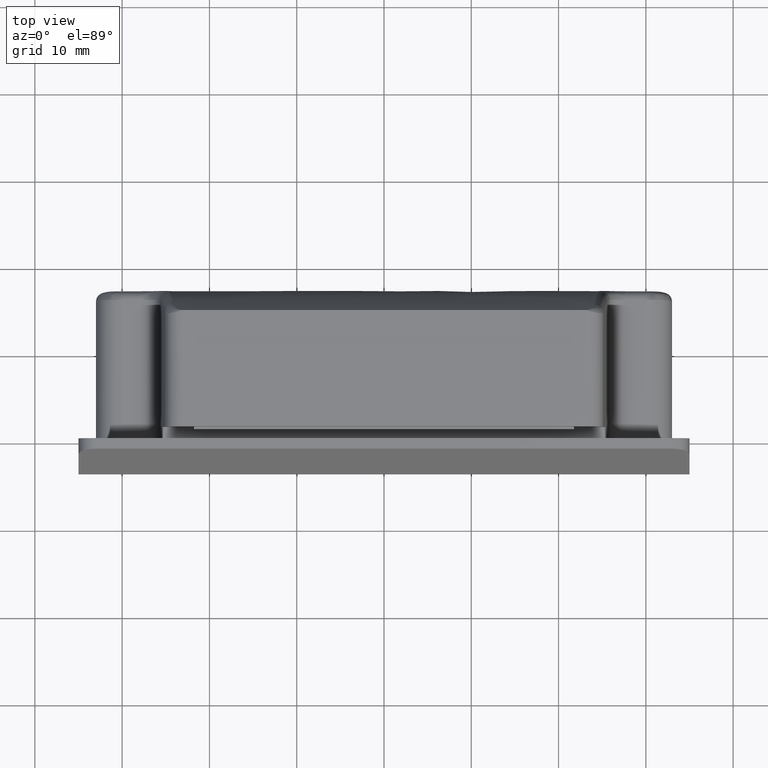
[diagram: clean part render]
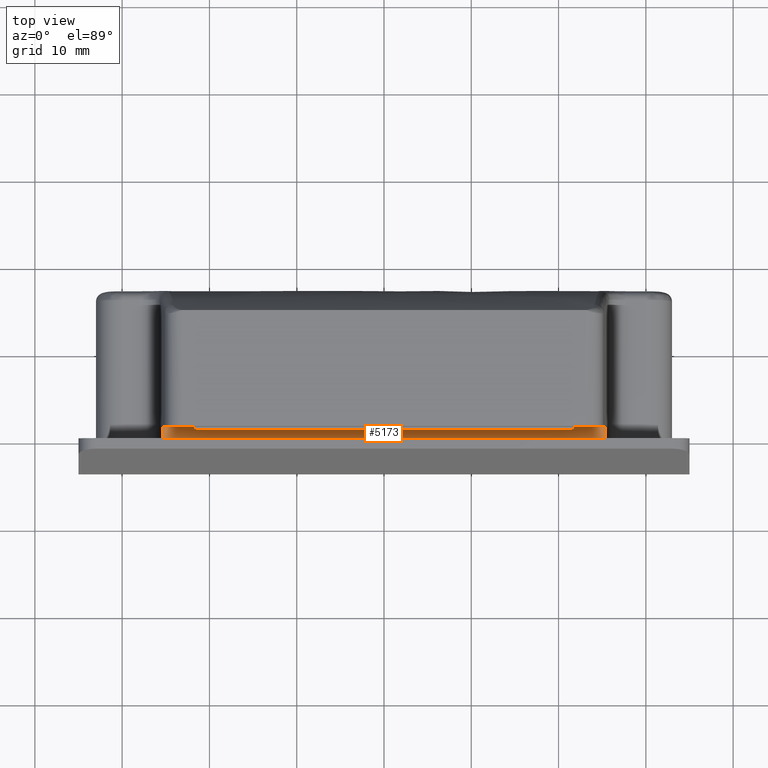
[diagram: same view with one face highlighted and labeled with its STEP entity id]
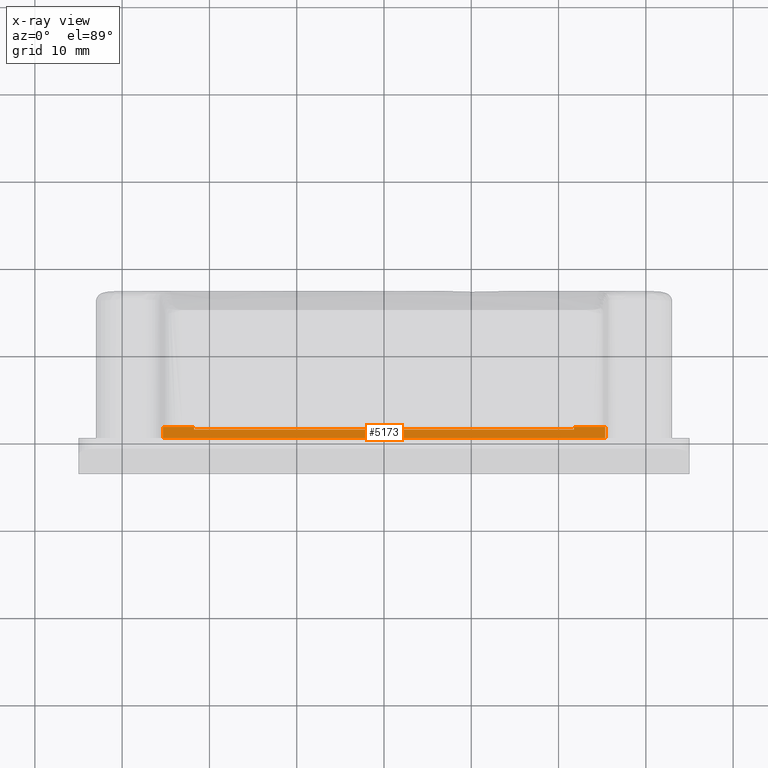
[diagram: x-ray of the same camera — body ghosted, the highlighted face saturated]
A machine part, top view. The second image highlights one B-rep face of the part: STEP entity #5173.
The next image is the same camera in x-ray: the body ghosted, the highlighted face saturated — about 0% of this face is hidden behind the body in this view.
In plain terms, the highlighted face is a freeform B-spline surface patch.
Its self-contained STEP definition (entity closure, byte-faithful):
#2233=CARTESIAN_POINT('',(-21.750000000000000,1.299999999999954,16.250000000000000));
#2234=VERTEX_POINT('',#2233);
#2240=CARTESIAN_POINT('',(-21.750000000000000,1.0,16.250000000000000));
#2241=VERTEX_POINT('',#2240);
#2242=CARTESIAN_POINT('',(-21.750000000000000,1.299999999999954,16.250000000000000));
#2243=CARTESIAN_POINT('',(-21.750000000000000,1.0,16.250000000000000));
#2244=QUASI_UNIFORM_CURVE('',1,(#2242,#2243),.UNSPECIFIED.,.F.,.U.);
#2245=EDGE_CURVE('',#2234,#2241,#2244,.T.);
#2269=CARTESIAN_POINT('',(21.750000000000000,1.0,16.250000000000000));
#2270=VERTEX_POINT('',#2269);
#2276=CARTESIAN_POINT('',(21.750000000000000,1.299999999999954,16.250000000000000));
#2277=VERTEX_POINT('',#2276);
#2278=CARTESIAN_POINT('',(21.750000000000000,1.299999999999954,16.250000000000000));
#2279=CARTESIAN_POINT('',(21.750000000000000,1.0,16.250000000000000));
#2280=QUASI_UNIFORM_CURVE('',1,(#2278,#2279),.UNSPECIFIED.,.F.,.U.);
#2281=EDGE_CURVE('',#2277,#2270,#2280,.T.);
#2297=CARTESIAN_POINT('',(21.750000000000000,1.0,16.250000000000000));
#2298=CARTESIAN_POINT('',(-21.750000000000000,1.0,16.250000000000000));
#2299=QUASI_UNIFORM_CURVE('',1,(#2297,#2298),.UNSPECIFIED.,.F.,.U.);
#2300=EDGE_CURVE('',#2270,#2241,#2299,.T.);
#4636=CARTESIAN_POINT('',(25.345762591833051,0.0,16.250000000000000));
#4637=VERTEX_POINT('',#4636);
#4638=CARTESIAN_POINT('',(-25.345761591833000,0.0,16.250000000000000));
#4639=VERTEX_POINT('',#4638);
#4640=CARTESIAN_POINT('',(25.345762591833051,0.0,16.250000000000000));
#4641=CARTESIAN_POINT('',(-25.345761591833000,0.0,16.250000000000000));
#4642=QUASI_UNIFORM_CURVE('',1,(#4640,#4641),.UNSPECIFIED.,.F.,.U.);
#4643=EDGE_CURVE('',#4637,#4639,#4642,.T.);
#5050=CARTESIAN_POINT('',(-25.345761591833000,1.299999999999954,16.250000000000000));
#5051=VERTEX_POINT('',#5050);
#5052=CARTESIAN_POINT('',(-25.345761591833000,0.0,16.250000000000000));
#5053=CARTESIAN_POINT('',(-25.345761591833000,1.299999999999954,16.250000000000000));
#5054=QUASI_UNIFORM_CURVE('',1,(#5052,#5053),.UNSPECIFIED.,.F.,.U.);
#5055=EDGE_CURVE('',#4639,#5051,#5054,.T.);
#5079=CARTESIAN_POINT('',(25.345762591833051,1.299999999999954,16.250000000000000));
#5080=VERTEX_POINT('',#5079);
#5086=CARTESIAN_POINT('',(25.345762591833051,1.299999999999954,16.250000000000000));
#5087=CARTESIAN_POINT('',(25.345762591833051,0.0,16.250000000000000));
#5088=QUASI_UNIFORM_CURVE('',1,(#5086,#5087),.UNSPECIFIED.,.F.,.U.);
#5089=EDGE_CURVE('',#5080,#4637,#5088,.T.);
#5150=CARTESIAN_POINT('',(-27.877803126557119,1.364934997480300,16.250000000000000));
#5151=CARTESIAN_POINT('',(27.877805486209802,1.364934997480300,16.250000000000000));
#5152=CARTESIAN_POINT('',(-27.877803126557119,-0.064935032349063,16.250000000000000));
#5153=CARTESIAN_POINT('',(27.877805486209791,-0.064935032349063,16.250000000000000));
#5154=B_SPLINE_SURFACE_WITH_KNOTS('',1,1,((#5150,#5152),(#5151,#5153)),.UNSPECIFIED.,.F.,.F.,.U.,(2,2),(2,2),(0.0,55.755608612766913),(0.041708334948495,0.958291687403247),.UNSPECIFIED.);
#5155=ORIENTED_EDGE('',*,*,#2281,.T.);
#5156=ORIENTED_EDGE('',*,*,#2300,.T.);
#5157=ORIENTED_EDGE('',*,*,#2245,.F.);
#5158=CARTESIAN_POINT('',(-25.345761591833000,1.299999999999954,16.250000000000000));
#5159=CARTESIAN_POINT('',(-21.750000000000000,1.299999999999954,16.250000000000000));
#5160=QUASI_UNIFORM_CURVE('',1,(#5158,#5159),.UNSPECIFIED.,.F.,.U.);
#5161=EDGE_CURVE('',#5051,#2234,#5160,.T.);
#5162=ORIENTED_EDGE('',*,*,#5161,.F.);
#5163=ORIENTED_EDGE('',*,*,#5055,.F.);
#5164=ORIENTED_EDGE('',*,*,#4643,.F.);
#5165=ORIENTED_EDGE('',*,*,#5089,.F.);
#5166=CARTESIAN_POINT('',(21.750000000000000,1.299999999999954,16.250000000000000));
#5167=CARTESIAN_POINT('',(25.345762591833051,1.299999999999954,16.250000000000000));
#5168=QUASI_UNIFORM_CURVE('',1,(#5166,#5167),.UNSPECIFIED.,.F.,.U.);
#5169=EDGE_CURVE('',#2277,#5080,#5168,.T.);
#5170=ORIENTED_EDGE('',*,*,#5169,.F.);
#5171=EDGE_LOOP('',(#5155,#5156,#5157,#5162,#5163,#5164,#5165,#5170));
#5172=FACE_OUTER_BOUND('',#5171,.T.);
#5173=ADVANCED_FACE('',(#5172),#5154,.F.);